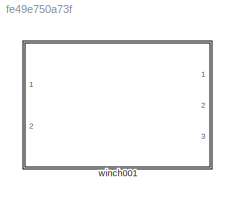
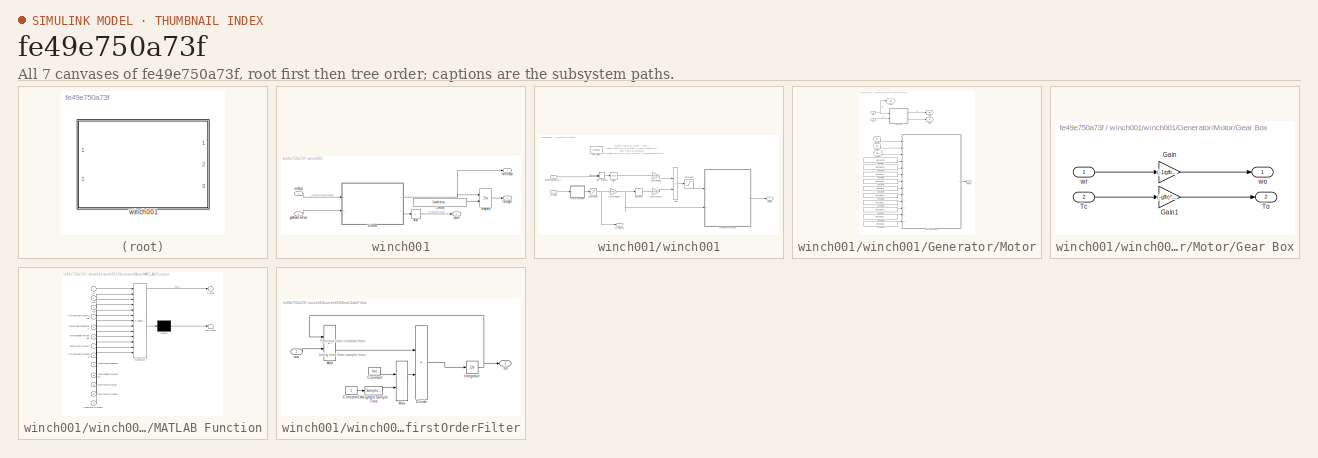
[diagram: thumbnail index - all 7 canvases of the model, root first then tree order]
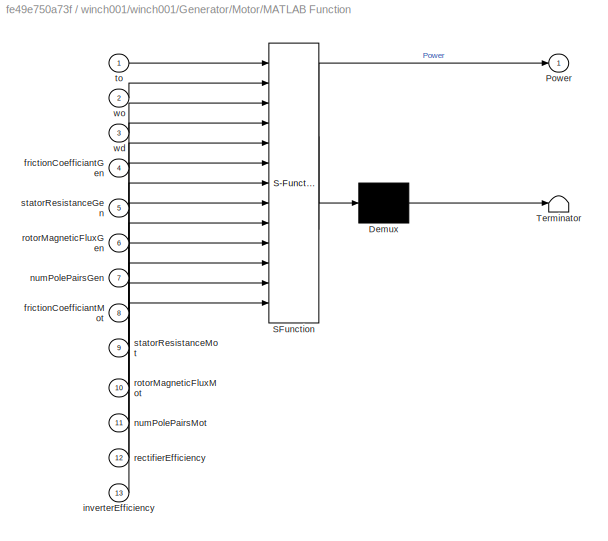
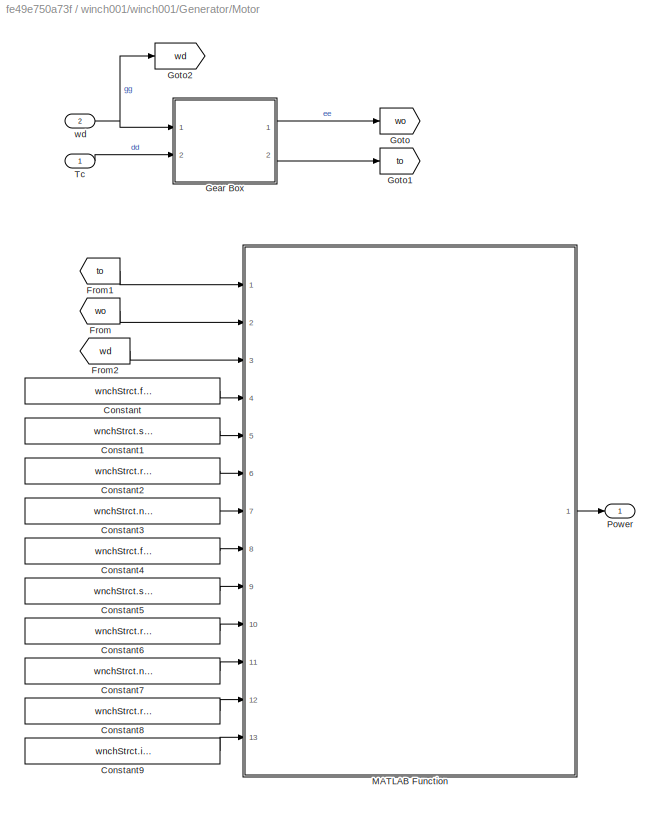
MODEL slx_fe49e750a73f
KIND library
CONFIG AbsTol = auto
CONFIG EnableMultiTasking = off
CONFIG FixedStep = auto
CONFIG MaxStep = auto
CONFIG MinStep = auto
CONFIG RelTol = 1e-3
CONFIG SampleTimeConstraint = Unconstrained
CONFIG SolverName = VariableStepAuto
CONFIG StartTime = 0.0
CONFIG StopTime = 10.0
BLOCK [SubSystem] winch001
  Ports = [2, 3]
  RequestExecContextInheritance = off
  VariantControl = VSS_winch_winch001
BLOCK [Sum] winch001/Add
  IconShape = rectangular
  Inputs = +
  Ports = [1, 1]
BLOCK [Constant] winch001/Constant
  Value = [wnch.struct('OCT.umWinch').initLength]'
  VectorParams1D = off
BLOCK [Integrator] winch001/Integrator
  InitialConditionSource = external
  Ports = [2, 1]
BLOCK [Inport] winch001/cmdSpd
BLOCK [Inport] winch001/gndNodeTenVecs
  Port = 2
BLOCK [Outport] winch001/power
  VectorParamsAs1DForOutWhenUnconnected = off
BLOCK [Outport] winch001/thrLength
  Port = 2
  VectorParamsAs1DForOutWhenUnconnected = off
BLOCK [Outport] winch001/thrRelease
  Port = 3
  VectorParamsAs1DForOutWhenUnconnected = off
BLOCK [SubSystem] winch001/winch001
  Ports = [2, 2]
  RequestExecContextInheritance = off
BLOCK [Gain] winch001/winch001/1//DrumRadius
  Gain = 1/wnchStrct.drumRadius
BLOCK [Derivative] winch001/winch001/Derivative
BLOCK [DotProduct] winch001/winch001/Dot Product
  OutDataTypeStr = Inherit: Inherit via internal rule
BLOCK [Gain] winch001/winch001/DrumInertia
  Gain = wnchStrct.drumInertia
BLOCK [Gain] winch001/winch001/DrumRadius
  Gain = wnchStrct.drumRadius
BLOCK [ForEach] winch001/winch001/For Each
  DisableCoverage = on
  IterateSubsysMaskParameter = on
  Ports = []
  SubsysMaskParameterIterationDimension = 2
BLOCK [SubSystem] winch001/winch001/Generator//Motor
  Ports = [2, 1]
  RequestExecContextInheritance = off
BLOCK [Constant] winch001/winch001/Generator//Motor/Constant
  Value = wnchStrct.frictionCoefficiantGen
BLOCK [Constant] winch001/winch001/Generator//Motor/Constant1
  Value = wnchStrct.statorResistanceGen
BLOCK [Constant] winch001/winch001/Generator//Motor/Constant2
  Value = wnchStrct.rotorMagneticFluxGen
BLOCK [Constant] winch001/winch001/Generator//Motor/Constant3
  Value = wnchStrct.numPolePairsGen
BLOCK [Constant] winch001/winch001/Generator//Motor/Constant4
  Value = wnchStrct.frictionCoefficiantMot
BLOCK [Constant] winch001/winch001/Generator//Motor/Constant5
  Value = wnchStrct.statorResistanceMot
BLOCK [Constant] winch001/winch001/Generator//Motor/Constant6
  Value = wnchStrct.rotorMagneticFluxMot
BLOCK [Constant] winch001/winch001/Generator//Motor/Constant7
  Value = wnchStrct.numPolePairsMot
BLOCK [Constant] winch001/winch001/Generator//Motor/Constant8
  Value = wnchStrct.rectifierEfficiency
BLOCK [Constant] winch001/winch001/Generator//Motor/Constant9
  Value = wnchStrct.inverterEfficiency
BLOCK [From] winch001/winch001/Generator//Motor/From
  GotoTag = wo
BLOCK [From] winch001/winch001/Generator//Motor/From1
  GotoTag = to
BLOCK [From] winch001/winch001/Generator//Motor/From2
  GotoTag = wd
BLOCK [SubSystem] winch001/winch001/Generator//Motor/Gear Box
  Ports = [2, 2]
  RequestExecContextInheritance = off
BLOCK [Gain] winch001/winch001/Generator//Motor/Gear Box/Gain
  Gain = (-1/gfb)^(Np)
BLOCK [Gain] winch001/winch001/Generator//Motor/Gear Box/Gain1
  Gain = (-gfb)^(Np)
BLOCK [Inport] winch001/winch001/Generator//Motor/Gear Box/Tc
  Port = 2
BLOCK [Outport] winch001/winch001/Generator//Motor/Gear Box/To
  Port = 2
  VectorParamsAs1DForOutWhenUnconnected = off
BLOCK [Outport] winch001/winch001/Generator//Motor/Gear Box/wo
  VectorParamsAs1DForOutWhenUnconnected = off
BLOCK [Inport] winch001/winch001/Generator//Motor/Gear Box/wr
BLOCK [Goto] winch001/winch001/Generator//Motor/Goto
  GotoTag = wo
BLOCK [Goto] winch001/winch001/Generator//Motor/Goto1
  GotoTag = to
BLOCK [Goto] winch001/winch001/Generator//Motor/Goto2
  GotoTag = wd
BLOCK [SubSystem] winch001/winch001/Generator//Motor/MATLAB Function
  ErrorFcn = Stateflow.Translate.translate
  PermitHierarchicalResolution = ExplicitOnly
  Ports = [13, 1]
  RequestExecContextInheritance = off
  SFBlockType = MATLAB Function
  TreatAsAtomicUnit = on
BLOCK [Demux] winch001/winch001/Generator//Motor/MATLAB Function/ Demux 
  Outputs = 1
  Ports = [1, 1]
BLOCK [S-Function] winch001/winch001/Generator//Motor/MATLAB Function/ SFunction 
  EnableBusSupport = off
  FunctionName = sf_sfun
  PortCounts = [13 2]
  Ports = [13, 2]
  SFcnIsStateOwnerBlock = off
  SFunctionDeploymentMode = off
  Tag = Stateflow S-Function 44
BLOCK [Terminator] winch001/winch001/Generator//Motor/MATLAB Function/ Terminator 
BLOCK [Outport] winch001/winch001/Generator//Motor/MATLAB Function/Power
  VectorParamsAs1DForOutWhenUnconnected = off
BLOCK [Inport] winch001/winch001/Generator//Motor/MATLAB Function/frictionCoefficiantGen
  Port = 4
BLOCK [Inport] winch001/winch001/Generator//Motor/MATLAB Function/frictionCoefficiantMot
  Port = 8
BLOCK [Inport] winch001/winch001/Generator//Motor/MATLAB Function/inverterEfficiency
  Port = 13
BLOCK [Inport] winch001/winch001/Generator//Motor/MATLAB Function/numPolePairsGen
  Port = 7
BLOCK [Inport] winch001/winch001/Generator//Motor/MATLAB Function/numPolePairsMot
  Port = 11
BLOCK [Inport] winch001/winch001/Generator//Motor/MATLAB Function/rectifierEfficiency
  Port = 12
BLOCK [Inport] winch001/winch001/Generator//Motor/MATLAB Function/rotorMagneticFluxGen
  Port = 6
BLOCK [Inport] winch001/winch001/Generator//Motor/MATLAB Function/rotorMagneticFluxMot
  Port = 10
BLOCK [Inport] winch001/winch001/Generator//Motor/MATLAB Function/statorResistanceGen
  Port = 5
BLOCK [Inport] winch001/winch001/Generator//Motor/MATLAB Function/statorResistanceMot
  Port = 9
BLOCK [Inport] winch001/winch001/Generator//Motor/MATLAB Function/to
BLOCK [Inport] winch001/winch001/Generator//Motor/MATLAB Function/wd
  Port = 3
BLOCK [Inport] winch001/winch001/Generator//Motor/MATLAB Function/wo
  Port = 2
BLOCK [Outport] winch001/winch001/Generator//Motor/Power
  VectorParamsAs1DForOutWhenUnconnected = off
BLOCK [Inport] winch001/winch001/Generator//Motor/Tc
BLOCK [Inport] winch001/winch001/Generator//Motor/wd
  Port = 2
BLOCK [Sum] winch001/winch001/Plus
  IconShape = rectangular
  Inputs = +-
  Ports = [2, 1]
BLOCK [Saturate] winch001/winch001/Saturation
  LowerLimit = 0
  UpperLimit = inf
BLOCK [Saturate] winch001/winch001/Saturation1
  LinearizeAsGain = off
  LowerLimit = -wnchStrct.maxSpeed
  UpperLimit = wnchStrct.maxSpeed
BLOCK [Sqrt] winch001/winch001/Sqrt
BLOCK [Inport] winch001/winch001/cmdSpd
  Partition = on
  PartitionDimension = 1
  PartitionOffset = 0
  PartitionWidth = 1
BLOCK [SubSystem] winch001/winch001/firstOrderFilter
  AncestorBlock = firstOrderFilter_ul/firstOrderFilter
  MinAlgLoopOccurrences = on
  Ports = [1, 1]
  RequestExecContextInheritance = off
  TreatAsAtomicUnit = on
BLOCK [Sum] winch001/winch001/firstOrderFilter/Add
  IconShape = rectangular
  Inputs = -+
  Ports = [2, 1]
BLOCK [Constant] winch001/winch001/firstOrderFilter/Constant
  Value = tau
BLOCK [Constant] winch001/winch001/firstOrderFilter/Constant1
BLOCK [Product] winch001/winch001/firstOrderFilter/Divide
  Inputs = */
  Ports = [2, 1]
BLOCK [Integrator] winch001/winch001/firstOrderFilter/Integrator
  InitialCondition = ic
  Ports = [1, 1]
BLOCK [MinMax] winch001/winch001/firstOrderFilter/Max
  Function = max
  Inputs = 2
  Ports = [2, 1]
BLOCK [SampleTimeMath] winch001/winch001/firstOrderFilter/Weighted Sample Time
  TsampMathOp = Ts Only
BLOCK [Outport] winch001/winch001/firstOrderFilter/filt
  VectorParamsAs1DForOutWhenUnconnected = off
BLOCK [Inport] winch001/winch001/firstOrderFilter/raw
BLOCK [Inport] winch001/winch001/gndTenVecBusArry
  Partition = on
  PartitionDimension = 3
  PartitionOffset = 0
  PartitionWidth = 1
  Port = 2
BLOCK [Outport] winch001/winch001/power
  ConcatenationDimension = 1
  Port = 2
  VectorParamsAs1DForOutWhenUnconnected = off
BLOCK [Outport] winch001/winch001/thrRelease
  ConcatenationDimension = 1
  VectorParamsAs1DForOutWhenUnconnected = off
ANNOTATION winch001/winch001: $\ddot{\theta}_dJ_d=\sum T_{ext}\\ \ddot{\theta}_dJ_d=T_{tether}-T_{motor/generator}\\ \dot{\theta}_d=\omega_d\\ \dot{\omega}_d=\frac{1}{J_d}(T_{tether}-T_{motor/generator})$
ANNOTATION winch001/winch001/firstOrderFilter: Prevents time constant from being less than sample time.
LINE winch001/Add:1 -> winch001/power:1
LINE winch001/Constant:1 -> winch001/Integrator:2
LINE winch001/Integrator:1 -> winch001/thrLength:1
LINE winch001/cmdSpd:1 -> winch001/winch001:1
LINE winch001/gndNodeTenVecs:1 -> winch001/winch001:2
NET winch001/winch001/1//DrumRadius:1 -> winch001/winch001/Derivative:1, winch001/winch001/Generator//Motor:2
LINE winch001/winch001/Derivative:1 -> winch001/winch001/DrumInertia:1
LINE winch001/winch001/Dot Product:1 -> winch001/winch001/Sqrt:1
LINE winch001/winch001/DrumInertia:1 -> winch001/winch001/Plus:2
LINE winch001/winch001/DrumRadius:1 -> winch001/winch001/Plus:1
LINE winch001/winch001/Generator//Motor/Constant1:1 -> winch001/winch001/Generator//Motor/MATLAB Function:5
LINE winch001/winch001/Generator//Motor/Constant2:1 -> winch001/winch001/Generator//Motor/MATLAB Function:6
LINE winch001/winch001/Generator//Motor/Constant3:1 -> winch001/winch001/Generator//Motor/MATLAB Function:7
LINE winch001/winch001/Generator//Motor/Constant4:1 -> winch001/winch001/Generator//Motor/MATLAB Function:8
LINE winch001/winch001/Generator//Motor/Constant5:1 -> winch001/winch001/Generator//Motor/MATLAB Function:9
LINE winch001/winch001/Generator//Motor/Constant6:1 -> winch001/winch001/Generator//Motor/MATLAB Function:10
LINE winch001/winch001/Generator//Motor/Constant7:1 -> winch001/winch001/Generator//Motor/MATLAB Function:11
LINE winch001/winch001/Generator//Motor/Constant8:1 -> winch001/winch001/Generator//Motor/MATLAB Function:12
LINE winch001/winch001/Generator//Motor/Constant9:1 -> winch001/winch001/Generator//Motor/MATLAB Function:13
LINE winch001/winch001/Generator//Motor/Constant:1 -> winch001/winch001/Generator//Motor/MATLAB Function:4
LINE winch001/winch001/Generator//Motor/From1:1 -> winch001/winch001/Generator//Motor/MATLAB Function:1
LINE winch001/winch001/Generator//Motor/From2:1 -> winch001/winch001/Generator//Motor/MATLAB Function:3
LINE winch001/winch001/Generator//Motor/From:1 -> winch001/winch001/Generator//Motor/MATLAB Function:2
LINE winch001/winch001/Generator//Motor/Gear Box/Gain1:1 -> winch001/winch001/Generator//Motor/Gear Box/To:1
LINE winch001/winch001/Generator//Motor/Gear Box/Gain:1 -> winch001/winch001/Generator//Motor/Gear Box/wo:1
LINE winch001/winch001/Generator//Motor/Gear Box/Tc:1 -> winch001/winch001/Generator//Motor/Gear Box/Gain1:1
LINE winch001/winch001/Generator//Motor/Gear Box/wr:1 -> winch001/winch001/Generator//Motor/Gear Box/Gain:1
LINE winch001/winch001/Generator//Motor/Gear Box:1 -> winch001/winch001/Generator//Motor/Goto:1
LINE winch001/winch001/Generator//Motor/Gear Box:2 -> winch001/winch001/Generator//Motor/Goto1:1
LINE winch001/winch001/Generator//Motor/MATLAB Function:1 -> winch001/winch001/Generator//Motor/Power:1
LINE winch001/winch001/Generator//Motor/Tc:1 -> winch001/winch001/Generator//Motor/Gear Box:2
NET winch001/winch001/Generator//Motor/wd:1 -> winch001/winch001/Generator//Motor/Gear Box:1, winch001/winch001/Generator//Motor/Goto2:1
LINE winch001/winch001/Generator//Motor:1 -> winch001/winch001/power:1
LINE winch001/winch001/Plus:1 -> winch001/winch001/Saturation:1
NET winch001/winch001/Saturation1:1 -> winch001/winch001/1//DrumRadius:1, winch001/winch001/thrRelease:1
LINE winch001/winch001/Saturation:1 -> winch001/winch001/Generator//Motor:1
LINE winch001/winch001/Sqrt:1 -> winch001/winch001/DrumRadius:1
LINE winch001/winch001/cmdSpd:1 -> winch001/winch001/firstOrderFilter:1
LINE winch001/winch001/firstOrderFilter:1 -> winch001/winch001/Saturation1:1
NET winch001/winch001/gndTenVecBusArry:1 -> winch001/winch001/Dot Product:1, winch001/winch001/Dot Product:2
NET winch001/winch001:1 -> winch001/Integrator:1, winch001/thrRelease:1
LINE winch001/winch001:2 -> winch001/Add:1
note: NET lines group one-source signal fan-out (src -> all destinations, sorted); 1:1 wires keep LINE
CHART winch001/winch001/Generator//Motor/MATLAB Function states=1 transitions=1
  STATE_LABEL 'eML_blk_kernel()'
  STATE_LABEL 'SCRIPT:\nfunction Power = fcn(to,wo,wd,frictionCoefficiantGen,statorResistanceGen,rotorMagneticFluxGen,numPolePairsGen,frictionCoefficiantMot,statorResistanceMot,rotorMagneticFluxMot,numPolePairsMot,rectifierEfficiency,inverterEfficiency)\n\n\nPower = 0;\n\nswitch sign(wd)\n    case 1\n        \n        wdAbs = abs(wo);\n        \n        Tf = frictionCoefficiantGen*wdAbs;\n        \n        eta = (to*wdAbs)/(...<+1159ch>'
CHART  states=0 transitions=0
